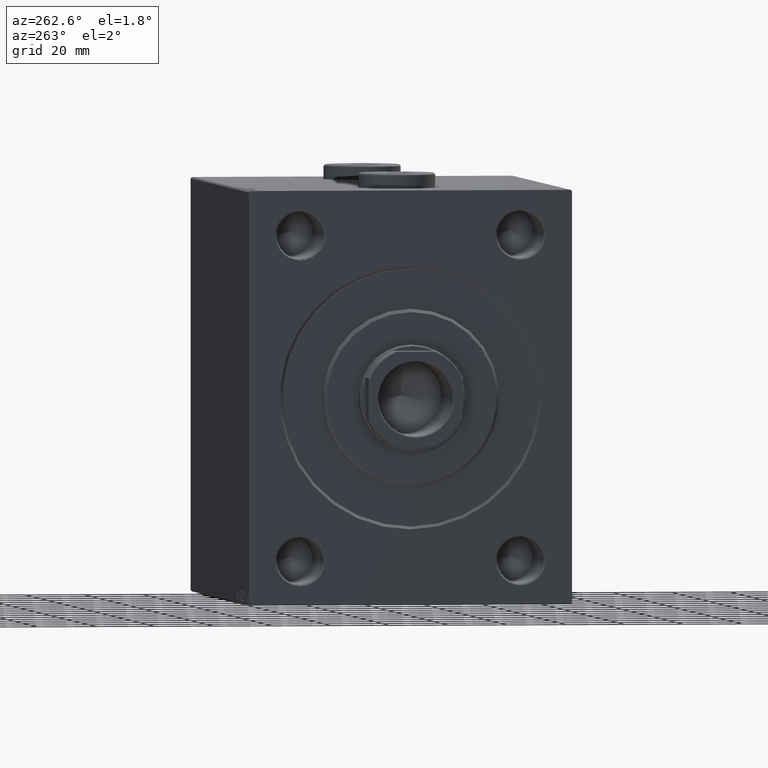
[diagram: clean part render]
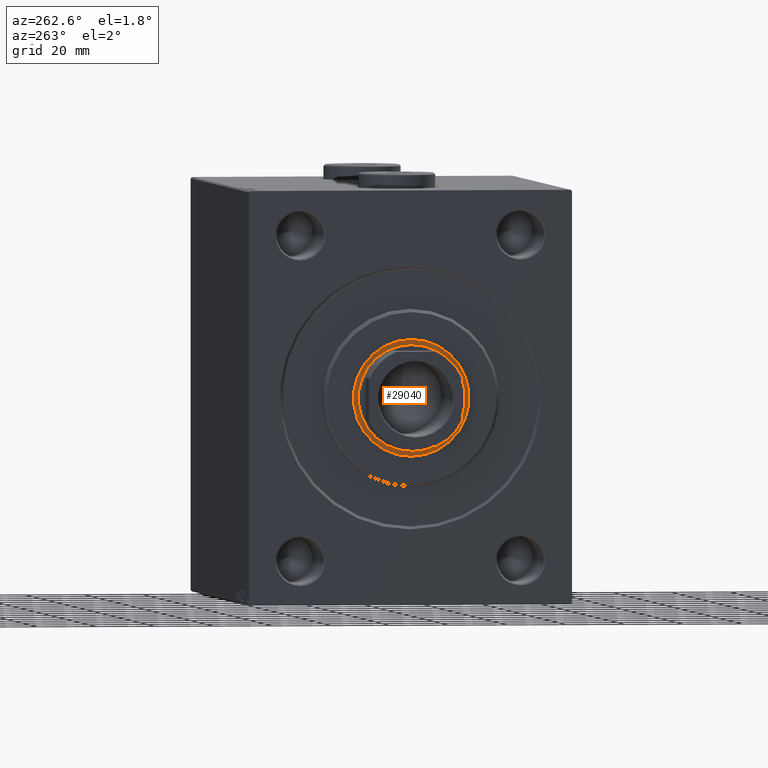
[diagram: same view with one face highlighted and labeled with its STEP entity id]
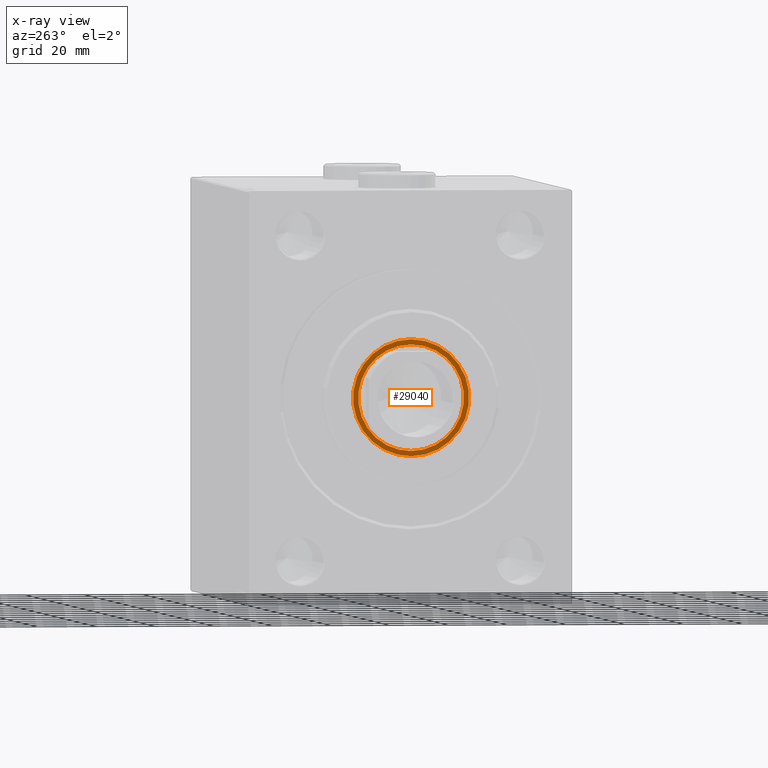
[diagram: x-ray of the same camera — body ghosted, the highlighted face saturated]
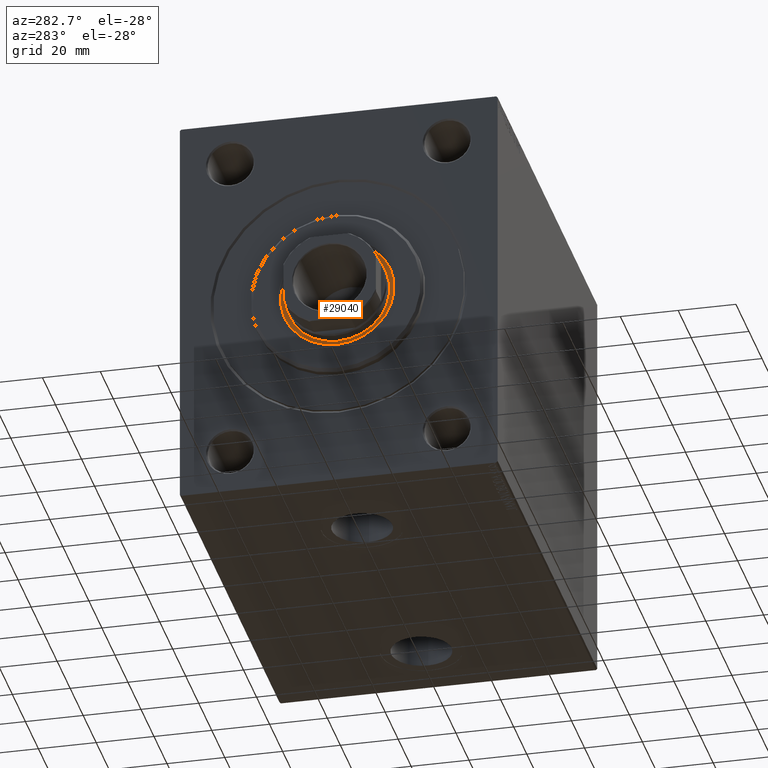
[diagram: same view with one face highlighted and labeled with its STEP entity id]
A machine part, auxiliary view. The second image highlights one B-rep face of the part: STEP entity #29040.
The next image is the same camera in x-ray: the body ghosted, the highlighted face saturated — about 0% of this face is hidden behind the body in this view.
A second angle (auxiliary view) of the same face is appended — the face is thin or edge-on in the first view.
In plain terms, the highlighted planar face has unit normal (-1, 0, 0).
Its self-contained STEP definition (entity closure, byte-faithful):
#505 = CARTESIAN_POINT ( 'NONE',  ( 1.499999999999999556, 0.000000000000000000, 0.000000000000000000 ) ) ;
#544 = DIRECTION ( 'NONE',  ( 1.000000000000000000, 0.000000000000000000, 0.000000000000000000 ) ) ;
#1000 = CARTESIAN_POINT ( 'NONE',  ( 1.500000000000000000, 0.000000000000000000, 0.000000000000000000 ) ) ;
#1114 = EDGE_CURVE ( 'NONE', #10861, #42578, #11411, .T. ) ;
#2363 = DIRECTION ( 'NONE',  ( 1.000000000000000000, 0.000000000000000000, 0.000000000000000000 ) ) ;
#2498 = CARTESIAN_POINT ( 'NONE',  ( 1.500000000000000000, 0.000000000000000000, 0.000000000000000000 ) ) ;
#2585 = DIRECTION ( 'NONE',  ( 0.000000000000000000, 0.000000000000000000, -1.000000000000000000 ) ) ;
#4708 = DIRECTION ( 'NONE',  ( 0.000000000000000000, 0.000000000000000000, -1.000000000000000000 ) ) ;
#6729 = ORIENTED_EDGE ( 'NONE', *, *, #10265, .F. ) ;
#7714 = AXIS2_PLACEMENT_3D ( 'NONE', #26407, #44203, #37042 ) ;
#8566 = AXIS2_PLACEMENT_3D ( 'NONE', #505, #24997, #29378 ) ;
#10265 = EDGE_CURVE ( 'NONE', #35788, #26173, #28486, .T. ) ;
#10545 = CARTESIAN_POINT ( 'NONE',  ( 1.499999999999999556, 2.204364238465235428E-15, 18.00000000000000000 ) ) ;
#10861 = VERTEX_POINT ( 'NONE', #16980 ) ;
#11411 = CIRCLE ( 'NONE', #7714, 19.75000000000000000 ) ;
#12515 = CIRCLE ( 'NONE', #32447, 19.75000000000000000 ) ;
#12533 = EDGE_LOOP ( 'NONE', ( #25190, #27023 ) ) ;
#13892 = EDGE_CURVE ( 'NONE', #26173, #35788, #31519, .T. ) ;
#16980 = CARTESIAN_POINT ( 'NONE',  ( 1.500000000000000000, 2.418677428316022331E-15, -19.75000000000000000 ) ) ;
#19254 = EDGE_CURVE ( 'NONE', #42578, #10861, #12515, .T. ) ;
#21079 = CARTESIAN_POINT ( 'NONE',  ( 1.499999999999999556, 0.000000000000000000, -18.00000000000000000 ) ) ;
#21412 = CARTESIAN_POINT ( 'NONE',  ( 1.500000000000000000, 0.000000000000000000, 19.75000000000000000 ) ) ;
#23290 = FACE_OUTER_BOUND ( 'NONE', #12533, .T. ) ;
#24997 = DIRECTION ( 'NONE',  ( 1.000000000000000000, 0.000000000000000000, 0.000000000000000000 ) ) ;
#25190 = ORIENTED_EDGE ( 'NONE', *, *, #19254, .T. ) ;
#26173 = VERTEX_POINT ( 'NONE', #10545 ) ;
#26407 = CARTESIAN_POINT ( 'NONE',  ( 1.500000000000000000, 0.000000000000000000, 0.000000000000000000 ) ) ;
#27023 = ORIENTED_EDGE ( 'NONE', *, *, #1114, .T. ) ;
#27673 = FACE_BOUND ( 'NONE', #34078, .T. ) ;
#27700 = ORIENTED_EDGE ( 'NONE', *, *, #13892, .F. ) ;
#28486 = CIRCLE ( 'NONE', #8566, 18.00000000000000000 ) ;
#29040 = ADVANCED_FACE ( 'NONE', ( #27673, #23290 ), #41769, .T. ) ;
#29378 = DIRECTION ( 'NONE',  ( 0.000000000000000000, 0.000000000000000000, -1.000000000000000000 ) ) ;
#29500 = AXIS2_PLACEMENT_3D ( 'NONE', #2498, #41085, #34842 ) ;
#31519 = CIRCLE ( 'NONE', #31547, 18.00000000000000000 ) ;
#31547 = AXIS2_PLACEMENT_3D ( 'NONE', #40945, #2363, #2585 ) ;
#32447 = AXIS2_PLACEMENT_3D ( 'NONE', #1000, #544, #4708 ) ;
#34078 = EDGE_LOOP ( 'NONE', ( #6729, #27700 ) ) ;
#34842 = DIRECTION ( 'NONE',  ( 0.000000000000000000, 0.000000000000000000, -1.000000000000000000 ) ) ;
#35788 = VERTEX_POINT ( 'NONE', #21079 ) ;
#37042 = DIRECTION ( 'NONE',  ( 0.000000000000000000, 0.000000000000000000, -1.000000000000000000 ) ) ;
#40945 = CARTESIAN_POINT ( 'NONE',  ( 1.499999999999999556, 0.000000000000000000, 0.000000000000000000 ) ) ;
#41085 = DIRECTION ( 'NONE',  ( 1.000000000000000000, 0.000000000000000000, 0.000000000000000000 ) ) ;
#41769 = PLANE ( 'NONE',  #29500 ) ;
#42578 = VERTEX_POINT ( 'NONE', #21412 ) ;
#44203 = DIRECTION ( 'NONE',  ( 1.000000000000000000, 0.000000000000000000, 0.000000000000000000 ) ) ;